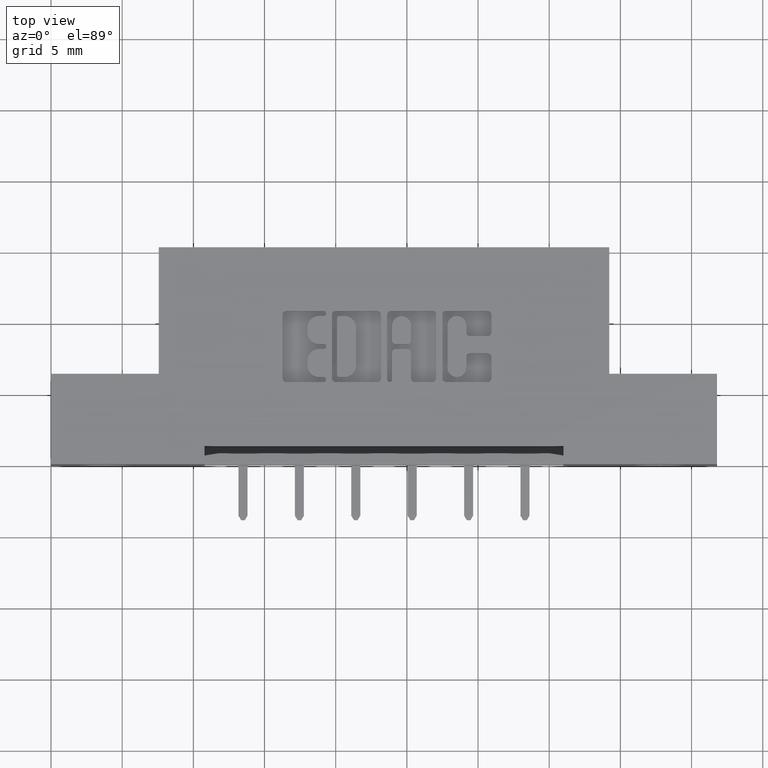
[diagram: clean part render]
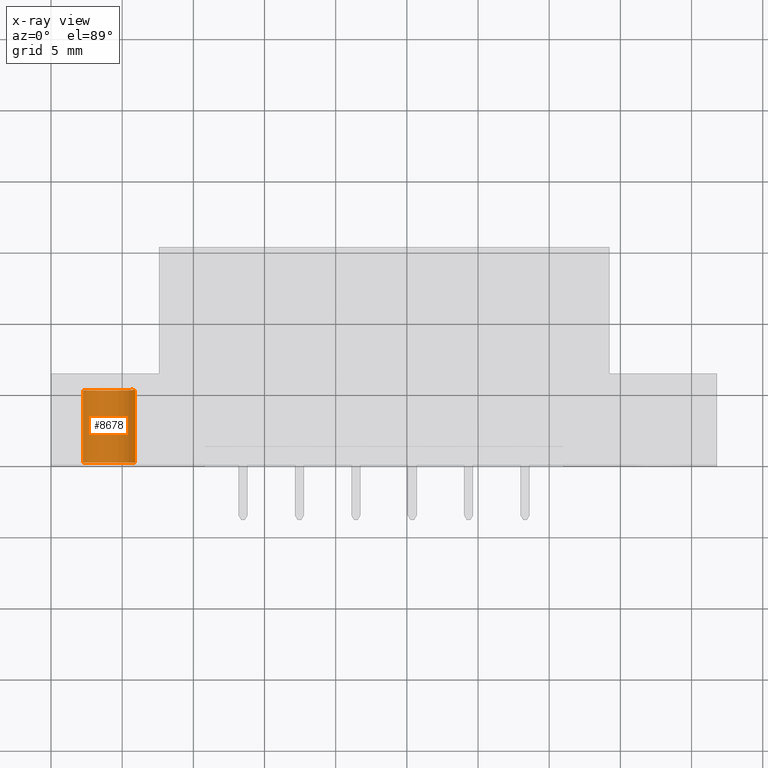
[diagram: x-ray — body ghosted, one internal face saturated and labeled with its STEP entity id]
A machine part, top view, then the same camera in x-ray: the body is ghosted and one INTERNAL B-rep face — a face not visible from any outside direction — is saturated and labeled: STEP entity #8678.
In plain terms, the highlighted cylindrical surface (edge-blend (fillet) strip) has radius 1.9685 mm, axis along (0, 1, -0).
Its self-contained STEP definition (entity closure, byte-faithful):
#511 = VERTEX_POINT ( 'NONE', #9107 ) ;
#534 = CARTESIAN_POINT ( 'NONE',  ( 9.491012693391986400E-018, 0.2400000000000000500, 0.07749999999999999900 ) ) ;
#1052 = CARTESIAN_POINT ( 'NONE',  ( 9.491012693391986400E-018, 0.04000000000000000100, 0.07749999999999999900 ) ) ;
#1139 = VECTOR ( 'NONE', #7697, 39.37007874015748100 ) ;
#1444 = VERTEX_POINT ( 'NONE', #8921 ) ;
#1456 = FACE_OUTER_BOUND ( 'NONE', #4025, .T. ) ;
#1822 = CARTESIAN_POINT ( 'NONE',  ( 0.0000000000000000000, 0.04000000000000000100, 0.0000000000000000000 ) ) ;
#2210 = CIRCLE ( 'NONE', #8759, 0.07749999999999999900 ) ;
#2401 = EDGE_CURVE ( 'NONE', #511, #4681, #4615, .T. ) ;
#2578 = DIRECTION ( 'NONE',  ( 0.0000000000000000000, 0.0000000000000000000, 1.000000000000000000 ) ) ;
#2941 = DIRECTION ( 'NONE',  ( -0.0000000000000000000, -1.000000000000000000, -0.0000000000000000000 ) ) ;
#2994 = DIRECTION ( 'NONE',  ( 0.0000000000000000000, 0.0000000000000000000, 1.000000000000000000 ) ) ;
#3171 = CYLINDRICAL_SURFACE ( 'NONE', #3469, 0.07749999999999999900 ) ;
#3255 = DIRECTION ( 'NONE',  ( 0.0000000000000000000, 0.0000000000000000000, -1.000000000000000000 ) ) ;
#3285 = AXIS2_PLACEMENT_3D ( 'NONE', #1822, #8275, #2578 ) ;
#3380 = LINE ( 'NONE', #9241, #4148 ) ;
#3469 = AXIS2_PLACEMENT_3D ( 'NONE', #6298, #7150, #3255 ) ;
#3904 = ORIENTED_EDGE ( 'NONE', *, *, #10198, .T. ) ;
#3966 = EDGE_CURVE ( 'NONE', #1444, #511, #2210, .T. ) ;
#4025 = EDGE_LOOP ( 'NONE', ( #4343, #9454, #3904, #7367 ) ) ;
#4148 = VECTOR ( 'NONE', #2941, 39.37007874015748100 ) ;
#4343 = ORIENTED_EDGE ( 'NONE', *, *, #2401, .F. ) ;
#4615 = LINE ( 'NONE', #534, #1139 ) ;
#4681 = VERTEX_POINT ( 'NONE', #1052 ) ;
#6298 = CARTESIAN_POINT ( 'NONE',  ( 0.0000000000000000000, 0.2400000000000000500, 0.0000000000000000000 ) ) ;
#6410 = EDGE_CURVE ( 'NONE', #8119, #4681, #8045, .T. ) ;
#7150 = DIRECTION ( 'NONE',  ( -0.0000000000000000000, -1.000000000000000000, -0.0000000000000000000 ) ) ;
#7367 = ORIENTED_EDGE ( 'NONE', *, *, #6410, .T. ) ;
#7697 = DIRECTION ( 'NONE',  ( -0.0000000000000000000, -1.000000000000000000, -0.0000000000000000000 ) ) ;
#7773 = DIRECTION ( 'NONE',  ( 0.0000000000000000000, 1.000000000000000000, 0.0000000000000000000 ) ) ;
#7873 = CARTESIAN_POINT ( 'NONE',  ( 0.0000000000000000000, 0.2400000000000000500, 0.0000000000000000000 ) ) ;
#8045 = CIRCLE ( 'NONE', #3285, 0.07749999999999999900 ) ;
#8119 = VERTEX_POINT ( 'NONE', #9174 ) ;
#8275 = DIRECTION ( 'NONE',  ( 0.0000000000000000000, 1.000000000000000000, 0.0000000000000000000 ) ) ;
#8678 = ADVANCED_FACE ( 'NONE', ( #1456 ), #3171, .T. ) ;
#8759 = AXIS2_PLACEMENT_3D ( 'NONE', #7873, #7773, #2994 ) ;
#8921 = CARTESIAN_POINT ( 'NONE',  ( 0.0000000000000000000, 0.2400000000000000500, -0.07749999999999999900 ) ) ;
#9107 = CARTESIAN_POINT ( 'NONE',  ( 9.491012693391986400E-018, 0.2400000000000000500, 0.07749999999999999900 ) ) ;
#9174 = CARTESIAN_POINT ( 'NONE',  ( 0.0000000000000000000, 0.04000000000000000100, -0.07749999999999999900 ) ) ;
#9241 = CARTESIAN_POINT ( 'NONE',  ( 0.0000000000000000000, 0.2400000000000000500, -0.07749999999999999900 ) ) ;
#9454 = ORIENTED_EDGE ( 'NONE', *, *, #3966, .F. ) ;
#10198 = EDGE_CURVE ( 'NONE', #1444, #8119, #3380, .T. ) ;